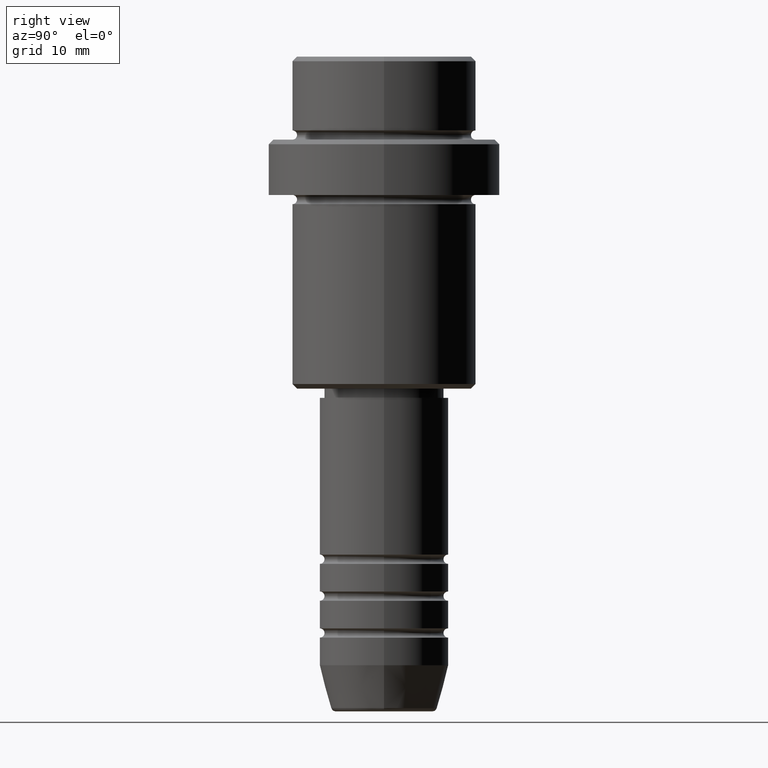
[diagram: clean part render]
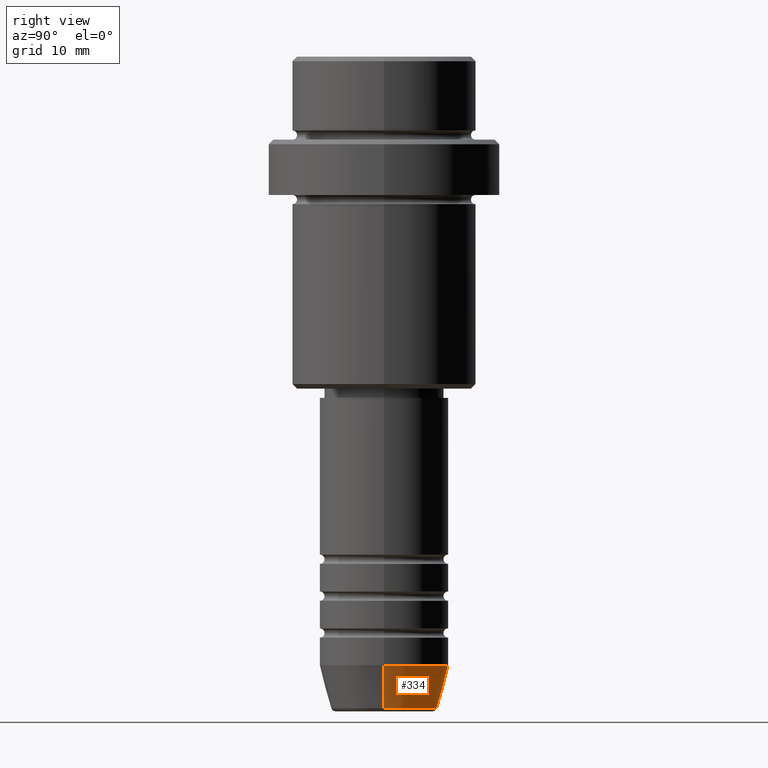
[diagram: same view with one face highlighted and labeled with its STEP entity id]
A machine part, right view. The second image highlights one B-rep face of the part: STEP entity #334.
In plain terms, the highlighted conical surface has half-angle 15 deg.
Its self-contained STEP definition (entity closure, byte-faithful):
#2 = DIRECTION ( 'NONE',  ( -0.000000000000000000, -0.000000000000000000, 1.000000000000000000 ) ) ;
#65 = ORIENTED_EDGE ( 'NONE', *, *, #645, .T. ) ;
#85 = DIRECTION ( 'NONE',  ( 0.2588190451025213501, 0.000000000000000000, 0.9659258262890680902 ) ) ;
#121 = VERTEX_POINT ( 'NONE', #774 ) ;
#148 = CARTESIAN_POINT ( 'NONE',  ( 7.000000000000000000, 0.000000000000000000, -66.00000000000000000 ) ) ;
#157 = VECTOR ( 'NONE', #829, 1000.000000000000000 ) ;
#198 = EDGE_CURVE ( 'NONE', #1412, #121, #884, .T. ) ;
#256 = CARTESIAN_POINT ( 'NONE',  ( 7.000000000000000000, 0.000000000000000000, -66.00000000000000000 ) ) ;
#262 = EDGE_LOOP ( 'NONE', ( #1390, #65, #376, #459 ) ) ;
#334 = ADVANCED_FACE ( 'NONE', ( #1023 ), #886, .T. ) ;
#376 = ORIENTED_EDGE ( 'NONE', *, *, #767, .F. ) ;
#387 = CARTESIAN_POINT ( 'NONE',  ( -7.000000000000000000, 8.572527594031473190E-16, -66.00000000000000000 ) ) ;
#437 = CARTESIAN_POINT ( 'NONE',  ( 0.000000000000000000, 0.000000000000000000, -66.00000000000000000 ) ) ;
#459 = ORIENTED_EDGE ( 'NONE', *, *, #844, .F. ) ;
#489 = AXIS2_PLACEMENT_3D ( 'NONE', #549, #2, #1300 ) ;
#530 = CARTESIAN_POINT ( 'NONE',  ( -7.000000000000000000, 8.572527594031473190E-16, -66.00000000000000000 ) ) ;
#549 = CARTESIAN_POINT ( 'NONE',  ( 0.000000000000000000, 0.000000000000000000, -70.62940952255127058 ) ) ;
#574 = AXIS2_PLACEMENT_3D ( 'NONE', #437, #1210, #615 ) ;
#615 = DIRECTION ( 'NONE',  ( 1.000000000000000000, 0.000000000000000000, 0.000000000000000000 ) ) ;
#645 = EDGE_CURVE ( 'NONE', #121, #1363, #857, .T. ) ;
#672 = CARTESIAN_POINT ( 'NONE',  ( 0.000000000000000000, 0.000000000000000000, -66.00000000000000000 ) ) ;
#707 = CARTESIAN_POINT ( 'NONE',  ( 5.759553456999433330, 0.000000000000000000, -70.62940952255127058 ) ) ;
#767 = EDGE_CURVE ( 'NONE', #963, #1363, #920, .T. ) ;
#768 = AXIS2_PLACEMENT_3D ( 'NONE', #672, #1351, #892 ) ;
#774 = CARTESIAN_POINT ( 'NONE',  ( -5.759553456999433330, 7.812973149831950787E-16, -70.62940952255127058 ) ) ;
#822 = LINE ( 'NONE', #256, #1114 ) ;
#829 = DIRECTION ( 'NONE',  ( -0.2588190451025213501, 3.169619151431772337E-17, 0.9659258262890680902 ) ) ;
#844 = EDGE_CURVE ( 'NONE', #1412, #963, #822, .T. ) ;
#857 = LINE ( 'NONE', #387, #157 ) ;
#884 = CIRCLE ( 'NONE', #489, 5.759553456999433330 ) ;
#886 = CONICAL_SURFACE ( 'NONE', #768, 7.000000000000000000, 0.2617993877991500740 ) ;
#892 = DIRECTION ( 'NONE',  ( 1.000000000000000000, 0.000000000000000000, 0.000000000000000000 ) ) ;
#920 = CIRCLE ( 'NONE', #574, 7.000000000000000000 ) ;
#963 = VERTEX_POINT ( 'NONE', #148 ) ;
#1023 = FACE_OUTER_BOUND ( 'NONE', #262, .T. ) ;
#1114 = VECTOR ( 'NONE', #85, 1000.000000000000000 ) ;
#1210 = DIRECTION ( 'NONE',  ( -0.000000000000000000, -0.000000000000000000, 1.000000000000000000 ) ) ;
#1300 = DIRECTION ( 'NONE',  ( 1.000000000000000000, 0.000000000000000000, 0.000000000000000000 ) ) ;
#1351 = DIRECTION ( 'NONE',  ( -0.000000000000000000, -0.000000000000000000, 1.000000000000000000 ) ) ;
#1363 = VERTEX_POINT ( 'NONE', #530 ) ;
#1390 = ORIENTED_EDGE ( 'NONE', *, *, #198, .T. ) ;
#1412 = VERTEX_POINT ( 'NONE', #707 ) ;